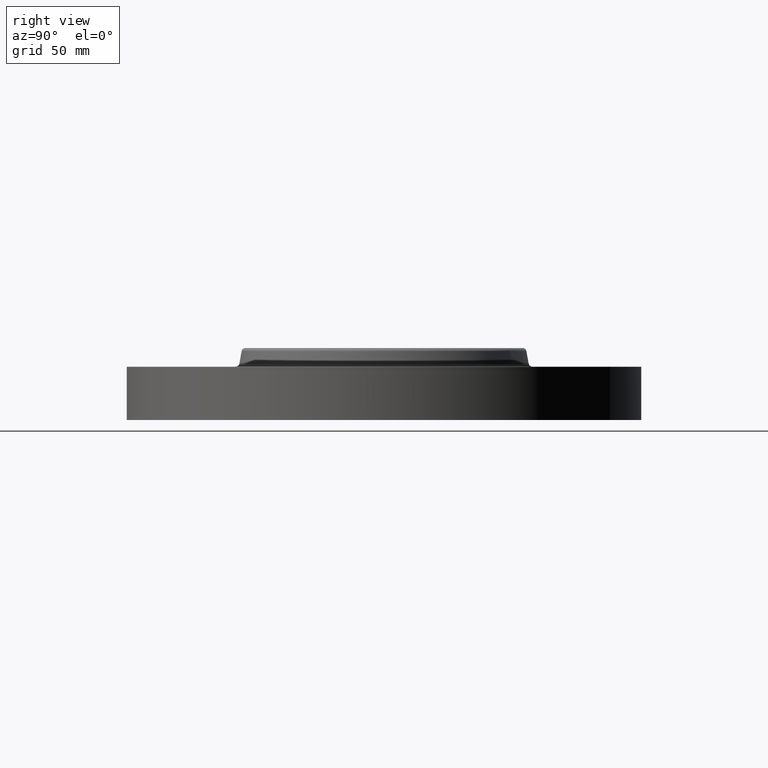
[diagram: clean part render]
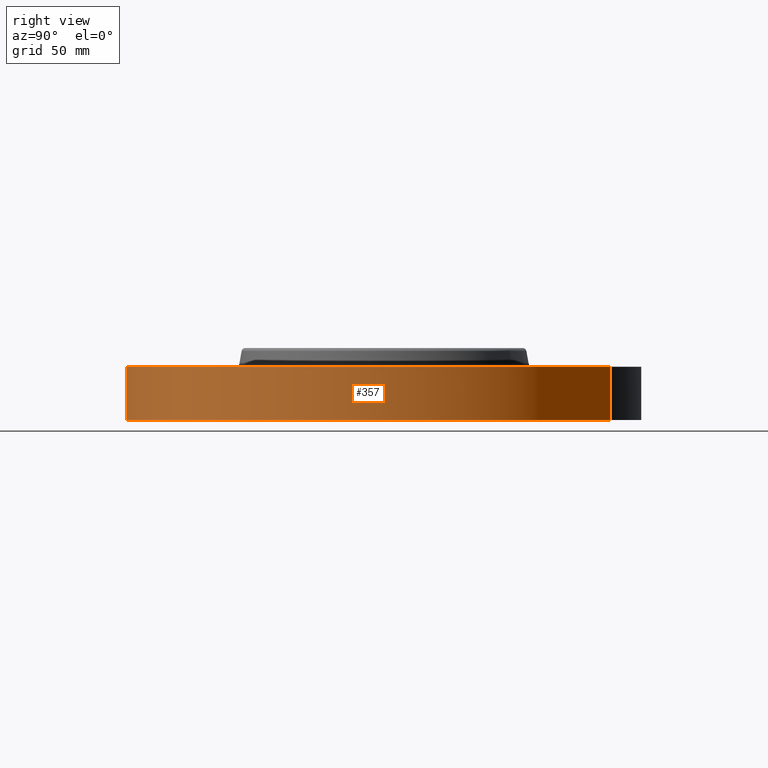
[diagram: same view with one face highlighted and labeled with its STEP entity id]
A machine part, right view. The second image highlights one B-rep face of the part: STEP entity #357.
In plain terms, the highlighted cylindrical surface (partial cylindrical patch) has radius 107.95 mm, axis along (0, 0, -1).
Its self-contained STEP definition (entity closure, byte-faithful):
#159=AXIS2_PLACEMENT_3D('Circle Axis2P3D',#157,#158,$) ;
#318=AXIS2_PLACEMENT_3D('Cylinder Axis2P3D',#315,#316,#317) ;
#348=AXIS2_PLACEMENT_3D('Circle Axis2P3D',#346,#347,$) ;
#152=CARTESIAN_POINT('Vertex',(-2.03755853908,-3.72972588805,5.59482469102E-016)) ;
#154=CARTESIAN_POINT('Vertex',(2.03755853908,3.72972588805,5.59482469102E-016)) ;
#157=CARTESIAN_POINT('Axis2P3D Location',(0.,0.,0.)) ;
#315=CARTESIAN_POINT('Axis2P3D Location',(0.,0.,0.595000000002)) ;
#320=CARTESIAN_POINT('Line Origine',(-2.03755853908,-3.72972588805,0.440000000002)) ;
#324=CARTESIAN_POINT('Vertex',(-2.03755853908,-3.72972588805,0.880000000004)) ;
#331=CARTESIAN_POINT('Vertex',(2.03755853908,3.72972588805,0.880000000004)) ;
#334=CARTESIAN_POINT('Line Origine',(2.03755853908,3.72972588805,0.440000000002)) ;
#346=CARTESIAN_POINT('Axis2P3D Location',(0.,0.,0.880000000004)) ;
#158=DIRECTION('Axis2P3D Direction',(0.,0.,-0.0393700787402)) ;
#316=DIRECTION('Axis2P3D Direction',(0.,0.,-0.0393700787402)) ;
#317=DIRECTION('Axis2P3D XDirection',(0.0188750212049,0.0345504945626,0.)) ;
#321=DIRECTION('Vector Direction',(0.,0.,-0.0393700787402)) ;
#335=DIRECTION('Vector Direction',(0.,0.,-0.0393700787402)) ;
#347=DIRECTION('Axis2P3D Direction',(0.,0.,-0.0393700787402)) ;
#322=VECTOR('Line Direction',#321,0.0393700787402) ;
#336=VECTOR('Line Direction',#335,0.0393700787402) ;
#352=ORIENTED_EDGE('',*,*,#161,.F.) ;
#353=ORIENTED_EDGE('',*,*,#338,.T.) ;
#354=ORIENTED_EDGE('',*,*,#350,.T.) ;
#355=ORIENTED_EDGE('',*,*,#326,.F.) ;
#357=ADVANCED_FACE('PartBody',(#356),#319,.T.) ;
#160=CIRCLE('generated circle',#159,4.25000000002) ;
#349=CIRCLE('generated circle',#348,4.25000000002) ;
#319=CYLINDRICAL_SURFACE('generated cylinder',#318,4.25000000002) ;
#161=EDGE_CURVE('',#155,#153,#160,.T.) ;
#326=EDGE_CURVE('',#153,#325,#323,.F.) ;
#338=EDGE_CURVE('',#155,#332,#337,.F.) ;
#350=EDGE_CURVE('',#332,#325,#349,.T.) ;
#351=EDGE_LOOP('',(#352,#353,#354,#355)) ;
#356=FACE_OUTER_BOUND('',#351,.T.) ;
#323=LINE('Line',#320,#322) ;
#337=LINE('Line',#334,#336) ;
#153=VERTEX_POINT('',#152) ;
#155=VERTEX_POINT('',#154) ;
#325=VERTEX_POINT('',#324) ;
#332=VERTEX_POINT('',#331) ;